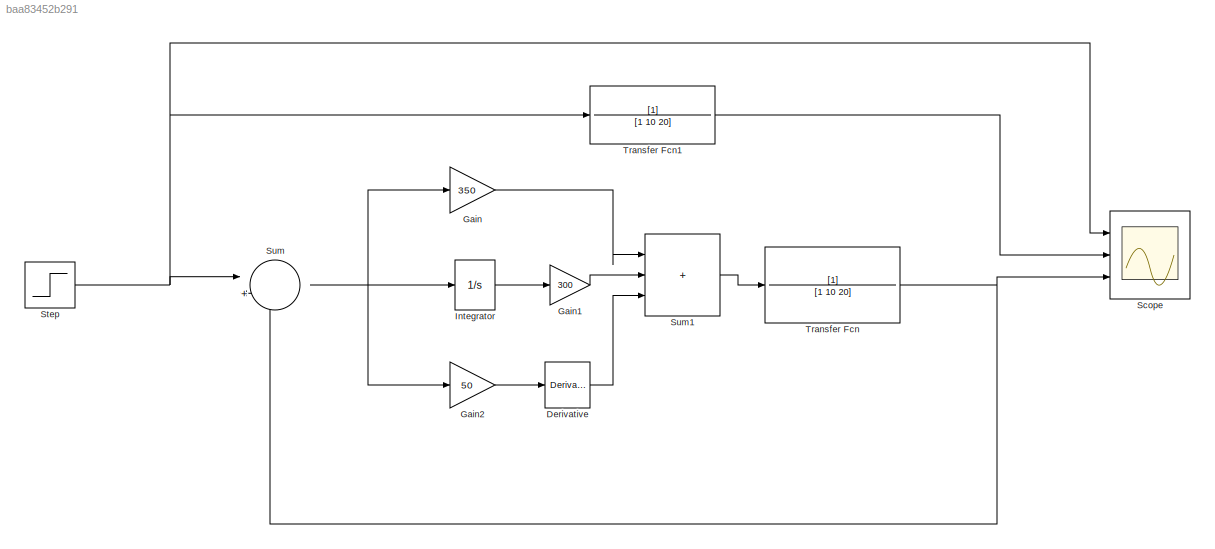
MODEL slx_baa83452b291
KIND model
CONFIG AbsTol = auto
CONFIG EnableMultiTasking = off
CONFIG FixedStep = auto
CONFIG MaxStep = auto
CONFIG MinStep = auto
CONFIG RelTol = 1e-3
CONFIG SampleTimeConstraint = Unconstrained
CONFIG Solver = VariableStepAuto
CONFIG SolverName = VariableStepAuto
CONFIG StartTime = 0.0
CONFIG StopTime = 10.0
BLOCK [Derivative] Derivative
BLOCK [Gain] Gain
  Gain = 350
BLOCK [Gain] Gain1
  Gain = 300
BLOCK [Gain] Gain2
  Gain = 50
BLOCK [Integrator] Integrator
  Ports = [1, 1]
BLOCK [Scope] Scope
  Floating = off
  NumInputPorts = 3
  Ports = [3]
  ScopeSpecificationString = Simulink.scopes.TimeScopeBlockCfg('CurrentConfiguration', extmgr.ConfigurationSet(extmgr.Configuration('Core','General UI',true),extmgr.Configuration('Core','Source UI',true),extmgr.Configuration('Sources','WiredSimulink',true),extmgr.Configuration('Visuals','Time Domain',true,'SerializedDisplays',{struct('MinYLimReal','-0.13149','MaxYLimReal','1.1834','YLabelReal','','MinYLimMag','0.00000','MaxYL...<+1410ch>
BLOCK [Step] Step
  SampleTime = 0
BLOCK [Sum] Sum
  Inputs = |+-
  Ports = [2, 1]
BLOCK [Sum] Sum1
  IconShape = rectangular
  Inputs = |+++
  Ports = [3, 1]
BLOCK [TransferFcn] Transfer Fcn
  Denominator = [1 10 20]
BLOCK [TransferFcn] Transfer Fcn1
  Denominator = [1 10 20]
LINE Derivative:1 -> Sum1:3
LINE Gain1:1 -> Sum1:2
LINE Gain2:1 -> Derivative:1
LINE Gain:1 -> Sum1:1
LINE Integrator:1 -> Gain1:1
NET Step:1 -> Scope:1, Sum:1, Transfer Fcn1:1
LINE Sum1:1 -> Transfer Fcn:1
NET Sum:1 -> Gain2:1, Gain:1, Integrator:1
LINE Transfer Fcn1:1 -> Scope:2
NET Transfer Fcn:1 -> Scope:3, Sum:2
note: NET lines group one-source signal fan-out (src -> all destinations, sorted); 1:1 wires keep LINE
